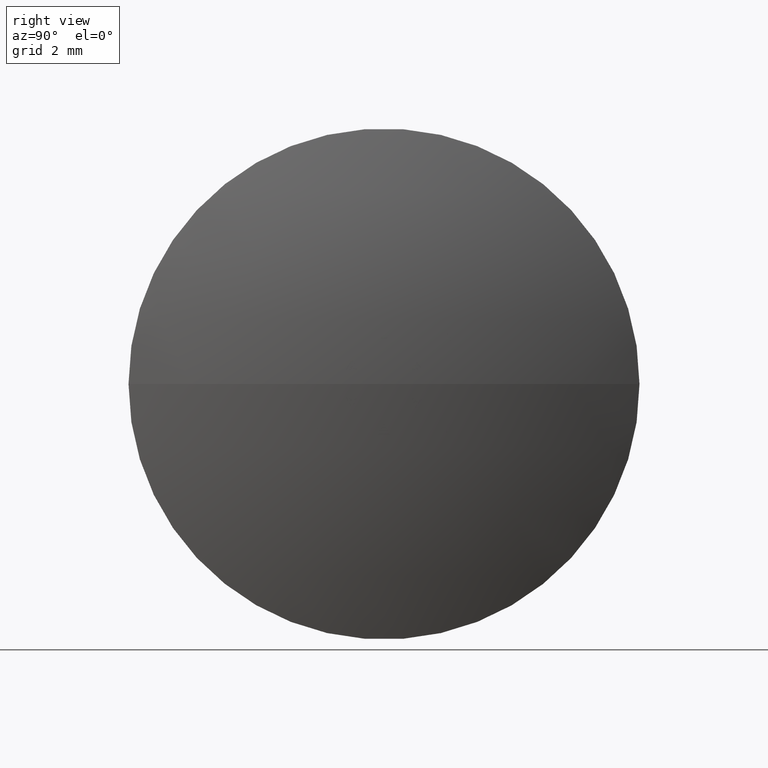
[diagram: clean part render]
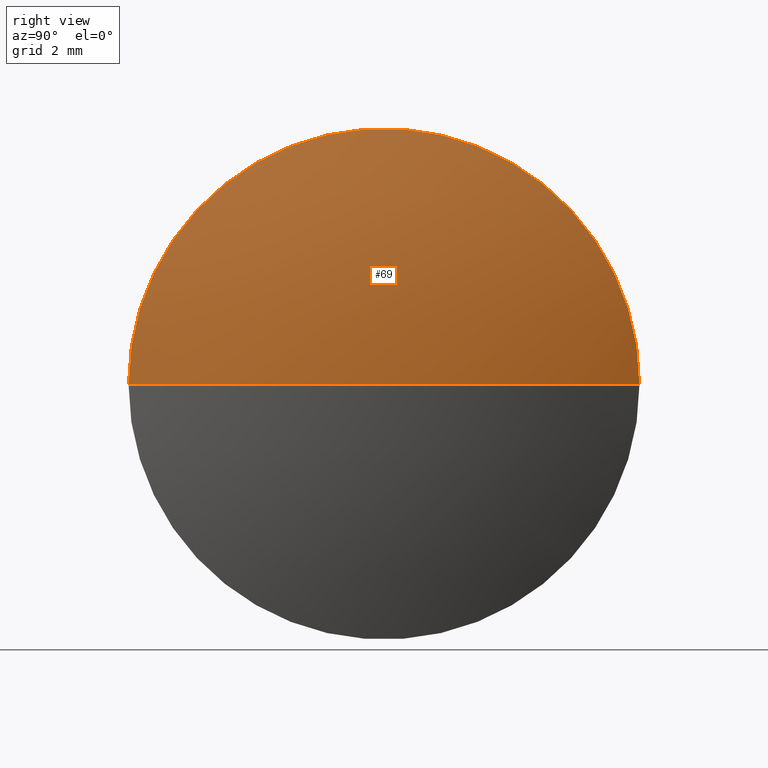
[diagram: same view with one face highlighted and labeled with its STEP entity id]
A machine part, right view. The second image highlights one B-rep face of the part: STEP entity #69.
In plain terms, the highlighted spherical surface has radius 20.1825 mm.
Its self-contained STEP definition (entity closure, byte-faithful):
#1 = DIRECTION ( 'NONE',  ( 2.159965328289782600E-015, -1.000000000000000000, 0.0000000000000000000 ) ) ;
#4 = CIRCLE ( 'NONE', #240, 6.425004895241819700 ) ;
#9 = EDGE_CURVE ( 'NONE', #67, #178, #162, .T. ) ;
#22 = DIRECTION ( 'NONE',  ( 1.890945324480586900E-015, -1.000000000000000000, 0.0000000000000000000 ) ) ;
#24 = AXIS2_PLACEMENT_3D ( 'NONE', #258, #96, #72 ) ;
#26 = DIRECTION ( 'NONE',  ( -1.000000000000000000, -1.907979147667159300E-015, -0.0000000000000000000 ) ) ;
#48 = ORIENTED_EDGE ( 'NONE', *, *, #81, .F. ) ;
#51 = EDGE_LOOP ( 'NONE', ( #48, #259, #138 ) ) ;
#67 = VERTEX_POINT ( 'NONE', #185 ) ;
#69 = ADVANCED_FACE ( 'NONE', ( #105 ), #188, .T. ) ;
#72 = DIRECTION ( 'NONE',  ( 0.0000000000000000000, -1.000000000000000000, -1.224646799147353200E-016 ) ) ;
#81 = EDGE_CURVE ( 'NONE', #67, #132, #167, .T. ) ;
#96 = DIRECTION ( 'NONE',  ( 2.336600556030481800E-031, -1.224646799147353200E-016, 1.000000000000000000 ) ) ;
#97 = AXIS2_PLACEMENT_3D ( 'NONE', #287, #284, #169 ) ;
#100 = CARTESIAN_POINT ( 'NONE',  ( 44.18971009732074900, 18.17017338519853100, 0.0000000000000000000 ) ) ;
#102 = CARTESIAN_POINT ( 'NONE',  ( 25.05725730939899500, 24.59517828044030500, 0.0000000000000000000 ) ) ;
#105 = FACE_OUTER_BOUND ( 'NONE', #51, .T. ) ;
#132 = VERTEX_POINT ( 'NONE', #100 ) ;
#138 = ORIENTED_EDGE ( 'NONE', *, *, #182, .F. ) ;
#139 = AXIS2_PLACEMENT_3D ( 'NONE', #102, #212, #22 ) ;
#162 = CIRCLE ( 'NONE', #24, 20.18245370577956200 ) ;
#167 = CIRCLE ( 'NONE', #97, 20.18245370577956200 ) ;
#169 = DIRECTION ( 'NONE',  ( -1.000000000000000000, 0.0000000000000000000, 0.0000000000000000000 ) ) ;
#178 = VERTEX_POINT ( 'NONE', #189 ) ;
#182 = EDGE_CURVE ( 'NONE', #132, #178, #4, .T. ) ;
#185 = CARTESIAN_POINT ( 'NONE',  ( 45.23971101517855700, 24.59517828044034400, 0.0000000000000000000 ) ) ;
#188 = SPHERICAL_SURFACE ( 'NONE', #139, 20.18245370577956200 ) ;
#189 = CARTESIAN_POINT ( 'NONE',  ( 44.18971009732072000, 31.02018317568213500, 7.868361679463932900E-016 ) ) ;
#212 = DIRECTION ( 'NONE',  ( -0.0000000000000000000, 0.0000000000000000000, 1.000000000000000000 ) ) ;
#240 = AXIS2_PLACEMENT_3D ( 'NONE', #264, #26, #1 ) ;
#258 = CARTESIAN_POINT ( 'NONE',  ( 25.05725730939899500, 24.59517828044030500, 0.0000000000000000000 ) ) ;
#259 = ORIENTED_EDGE ( 'NONE', *, *, #9, .T. ) ;
#264 = CARTESIAN_POINT ( 'NONE',  ( 44.18971009732073400, 24.59517828044032200, 0.0000000000000000000 ) ) ;
#284 = DIRECTION ( 'NONE',  ( 0.0000000000000000000, 0.0000000000000000000, -1.000000000000000000 ) ) ;
#287 = CARTESIAN_POINT ( 'NONE',  ( 25.05725730939899500, 24.59517828044030500, 0.0000000000000000000 ) ) ;